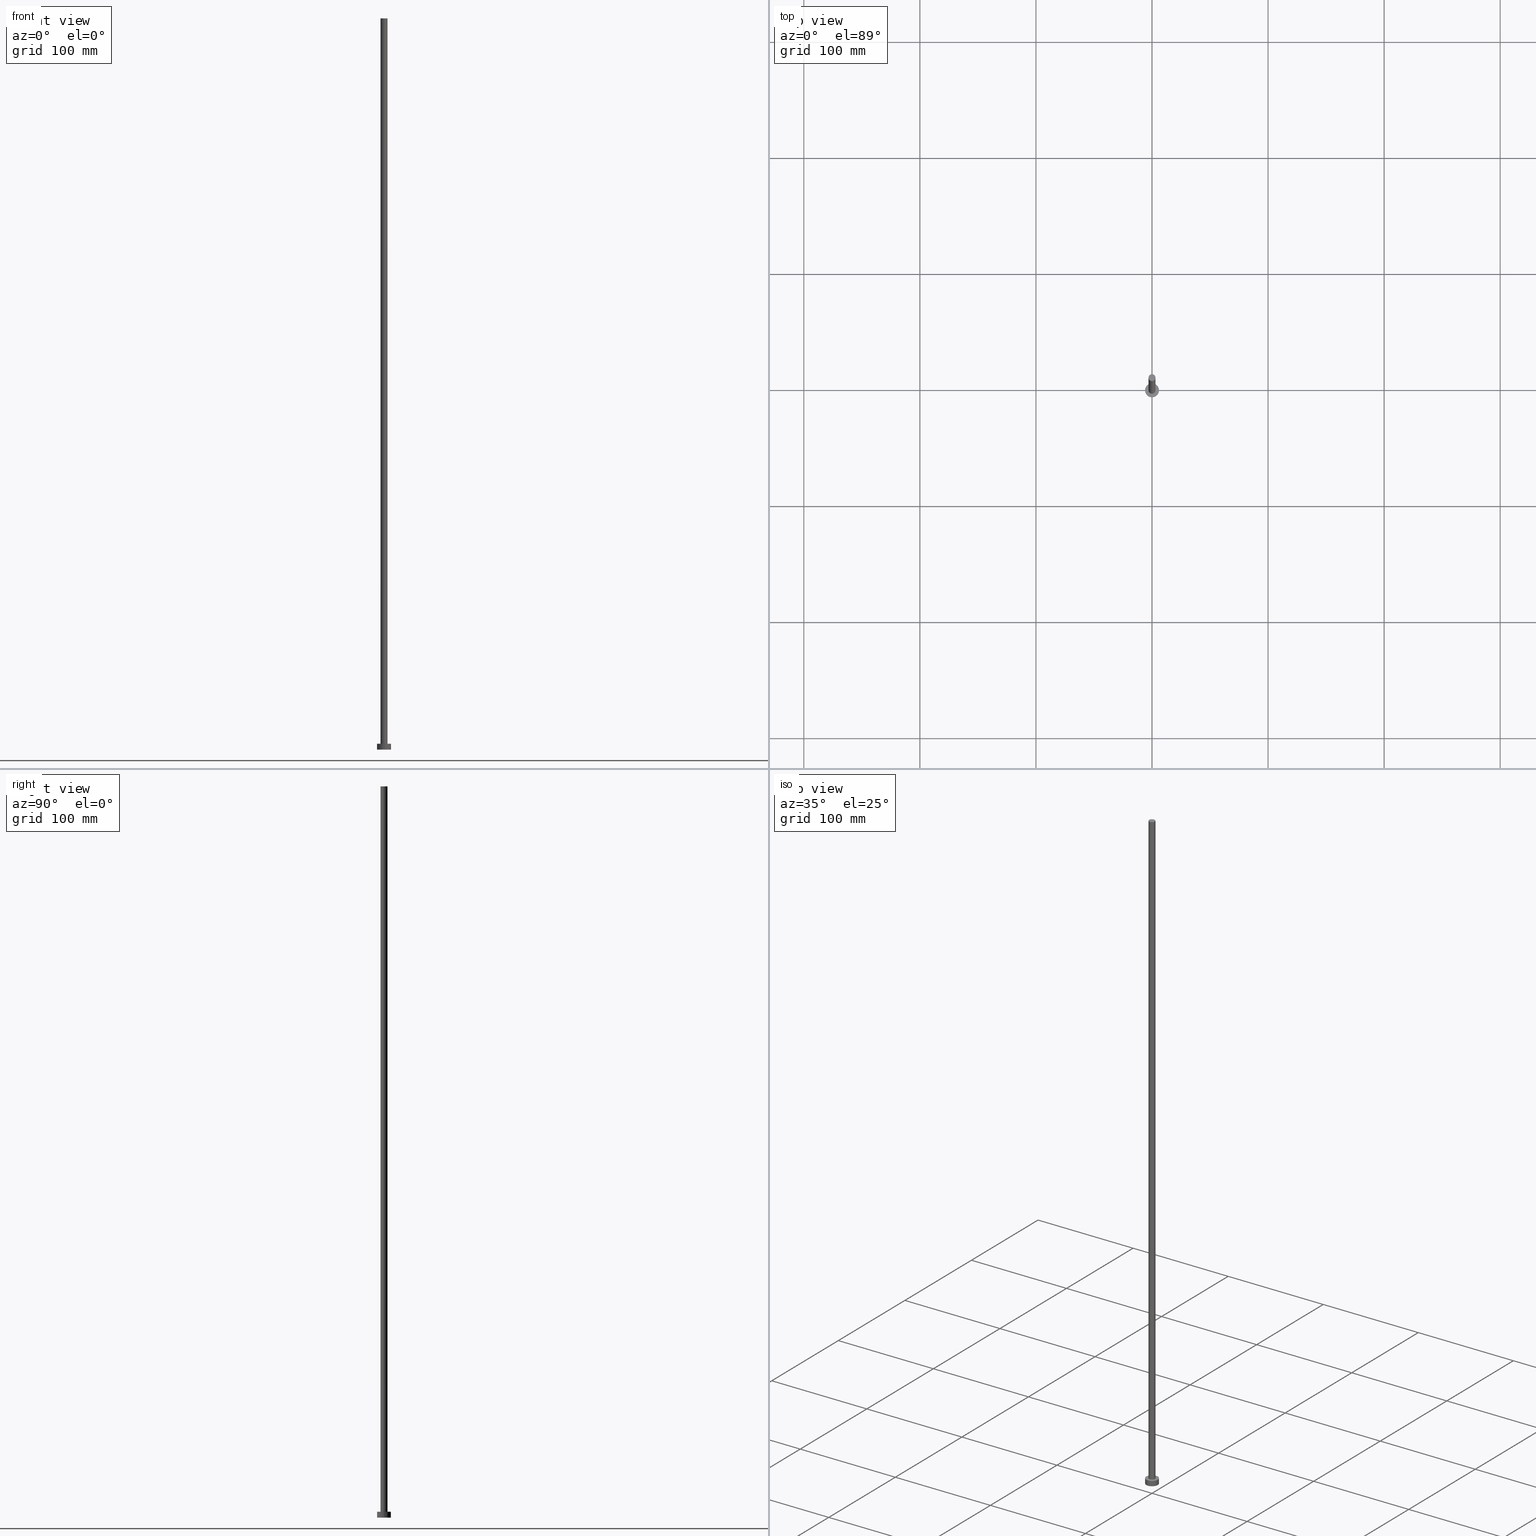
[diagram: canonical four-view strip — front | top / right | iso, engineering-drawing reading convention]
A machine part, canonical four-view strip (front | top / right | iso — engineering-drawing reading convention). The complete STEP part file that produces these views, byte-faithful:
ISO-10303-21;
HEADER;
FILE_DESCRIPTION (( 'STEP AP203' ),
    '1' );
FILE_NAME ('54c2.STEP',
    '2023-02-13T15:44:06',
    ( '' ),
    ( '' ),
    'SwSTEP 2.0',
    'SolidWorks 2019',
    '' );
FILE_SCHEMA (( 'CONFIG_CONTROL_DESIGN' ));
ENDSEC;

DATA;
#1 = DIRECTION ( 'NONE',  ( -0.000000000000000000, -0.000000000000000000, -1.000000000000000000 ) ) ;
#2 = FACE_OUTER_BOUND ( 'NONE', #109, .T. ) ;
#3 = CARTESIAN_POINT ( 'NONE',  ( 6.000000000000000888, 7.347880794884120722E-16, 0.000000000000000000 ) ) ;
#4 = AXIS2_PLACEMENT_3D ( 'NONE', #199, #254, #168 ) ;
#5 = PERSON_AND_ORGANIZATION_ROLE ( 'creator' ) ;
#6 = CALENDAR_DATE ( 2023, 13, 2 ) ;
#7 = DIRECTION ( 'NONE',  ( 1.000000000000000000, 0.000000000000000000, 0.000000000000000000 ) ) ;
#8 = ORIENTED_EDGE ( 'NONE', *, *, #94, .T. ) ;
#9 = CARTESIAN_POINT ( 'NONE',  ( 0.000000000000000000, 0.000000000000000000, 0.000000000000000000 ) ) ;
#10 = AXIS2_PLACEMENT_3D ( 'NONE', #220, #141, #47 ) ;
#11 = MANIFOLD_SOLID_BREP ( 'P�idat vysunut�m3', #46 ) ;
#12 = CC_DESIGN_PERSON_AND_ORGANIZATION_ASSIGNMENT ( #28, #5, ( #50 ) ) ;
#13 = VERTEX_POINT ( 'NONE', #80 ) ;
#14 = ORIENTED_EDGE ( 'NONE', *, *, #25, .F. ) ;
#15 = CARTESIAN_POINT ( 'NONE',  ( -3.000000000000000444, 0.000000000000000000, 630.0000000000000000 ) ) ;
#16 = ORIENTED_EDGE ( 'NONE', *, *, #198, .T. ) ;
#17 = CIRCLE ( 'NONE', #235, 6.000000000000000888 ) ;
#18 = DIRECTION ( 'NONE',  ( 1.000000000000000000, 0.000000000000000000, 0.000000000000000000 ) ) ;
#19 = APPROVAL ( #159, 'NEUR�EN�' ) ;
#20 = PLANE ( 'NONE',  #137 ) ;
#21 = DIRECTION ( 'NONE',  ( 0.000000000000000000, 0.000000000000000000, 1.000000000000000000 ) ) ;
#22 = DATE_TIME_ROLE ( 'creation_date' ) ;
#23 = APPROVAL_STATUS ( 'not_yet_approved' ) ;
#24 = AXIS2_PLACEMENT_3D ( 'NONE', #241, #210, #106 ) ;
#25 = EDGE_CURVE ( 'NONE', #187, #248, #217, .T. ) ;
#26 = EDGE_LOOP ( 'NONE', ( #87, #61, #231, #152 ) ) ;
#27 = AXIS2_PLACEMENT_3D ( 'NONE', #70, #110, #7 ) ;
#28 = PERSON_AND_ORGANIZATION ( #208, #166 ) ;
#29 = DIRECTION ( 'NONE',  ( -0.000000000000000000, -0.000000000000000000, -1.000000000000000000 ) ) ;
#30 = PERSON_AND_ORGANIZATION ( #208, #166 ) ;
#31 = PRODUCT_DEFINITION_SHAPE ( 'NONE', 'NONE',  #50 ) ;
#32 = DIRECTION ( 'NONE',  ( 0.000000000000000000, 0.000000000000000000, 1.000000000000000000 ) ) ;
#33 = ORIENTED_EDGE ( 'NONE', *, *, #57, .T. ) ;
#34 = AXIS2_PLACEMENT_3D ( 'NONE', #144, #222, #216 ) ;
#35 = EDGE_CURVE ( 'NONE', #248, #91, #73, .T. ) ;
#36 = ADVANCED_FACE ( 'NONE', ( #90 ), #181, .F. ) ;
#37 = CIRCLE ( 'NONE', #68, 3.000000000000000444 ) ;
#38 = ORIENTED_EDGE ( 'NONE', *, *, #35, .F. ) ;
#39 = CYLINDRICAL_SURFACE ( 'NONE', #114, 6.000000000000000888 ) ;
#40 = PERSON_AND_ORGANIZATION ( #208, #166 ) ;
#41 = DIRECTION ( 'NONE',  ( 0.000000000000000000, 0.000000000000000000, 1.000000000000000000 ) ) ;
#42 = DIRECTION ( 'NONE',  ( 0.000000000000000000, 0.000000000000000000, 1.000000000000000000 ) ) ;
#43 = CIRCLE ( 'NONE', #27, 6.000000000000000888 ) ;
#44 = EDGE_CURVE ( 'NONE', #153, #13, #173, .T. ) ;
#45 = DIRECTION ( 'NONE',  ( 0.000000000000000000, 0.000000000000000000, 1.000000000000000000 ) ) ;
#46 = CLOSED_SHELL ( 'NONE', ( #237, #211, #63, #154, #36, #122, #86 ) ) ;
#47 = DIRECTION ( 'NONE',  ( -1.000000000000000000, 0.000000000000000000, 0.000000000000000000 ) ) ;
#48 = AXIS2_PLACEMENT_3D ( 'NONE', #184, #45, #116 ) ;
#49 = VERTEX_POINT ( 'NONE', #92 ) ;
#50 = PRODUCT_DEFINITION ( 'NEZN�M�', '', #131, #212 ) ;
#51 = VECTOR ( 'NONE', #1, 1000.000000000000000 ) ;
#52 = ORIENTED_EDGE ( 'NONE', *, *, #25, .T. ) ;
#53 = EDGE_CURVE ( 'NONE', #74, #187, #43, .T. ) ;
#54 = CARTESIAN_POINT ( 'NONE',  ( 0.000000000000000000, 0.000000000000000000, 5.000000000000000000 ) ) ;
#55 = EDGE_LOOP ( 'NONE', ( #252, #38 ) ) ;
#56 = PERSON_AND_ORGANIZATION_ROLE ( 'design_supplier' ) ;
#57 = EDGE_CURVE ( 'NONE', #187, #74, #17, .T. ) ;
#58 = CARTESIAN_POINT ( 'NONE',  ( 6.000000000000000888, 7.347880794884120722E-16, 5.000000000000000000 ) ) ;
#59 = LINE ( 'NONE', #103, #51 ) ;
#60 = CARTESIAN_POINT ( 'NONE',  ( 0.000000000000000000, 0.000000000000000000, 0.000000000000000000 ) ) ;
#61 = ORIENTED_EDGE ( 'NONE', *, *, #44, .F. ) ;
#62 = DIRECTION ( 'NONE',  ( -1.000000000000000000, 0.000000000000000000, 0.000000000000000000 ) ) ;
#63 = ADVANCED_FACE ( 'NONE', ( #244 ), #127, .T. ) ;
#64 = CARTESIAN_POINT ( 'NONE',  ( -6.000000000000000888, 0.000000000000000000, 5.000000000000000000 ) ) ;
#65 = APPROVAL_PERSON_ORGANIZATION ( #219, #19, #75 ) ;
#66 = ADVANCED_BREP_SHAPE_REPRESENTATION ( '54c2', ( #11, #101 ), #229 ) ;
#67 = CC_DESIGN_PERSON_AND_ORGANIZATION_ASSIGNMENT ( #40, #56, ( #131 ) ) ;
#68 = AXIS2_PLACEMENT_3D ( 'NONE', #218, #42, #182 ) ;
#69 = COORDINATED_UNIVERSAL_TIME_OFFSET ( 1, 0, .AHEAD. ) ;
#70 = CARTESIAN_POINT ( 'NONE',  ( 0.000000000000000000, 0.000000000000000000, 5.000000000000000000 ) ) ;
#71 = EDGE_LOOP ( 'NONE', ( #232, #33 ) ) ;
#72 = APPROVAL_DATE_TIME ( #246, #19 ) ;
#73 = CIRCLE ( 'NONE', #128, 6.000000000000000888 ) ;
#74 = VERTEX_POINT ( 'NONE', #77 ) ;
#75 = APPROVAL_ROLE ( '' ) ;
#76 = EDGE_LOOP ( 'NONE', ( #136, #178 ) ) ;
#77 = CARTESIAN_POINT ( 'NONE',  ( -6.000000000000000888, 0.000000000000000000, 5.000000000000000000 ) ) ;
#78 = APPLICATION_PROTOCOL_DEFINITION ( 'international standard', 'config_control_design', 1994, #226 ) ;
#79 = PERSON_AND_ORGANIZATION ( #208, #166 ) ;
#80 = CARTESIAN_POINT ( 'NONE',  ( 3.000000000000000444, 3.673940397442060361E-16, 630.0000000000000000 ) ) ;
#81 = EDGE_CURVE ( 'NONE', #49, #89, #147, .T. ) ;
#82 = DIRECTION ( 'NONE',  ( 1.000000000000000000, 0.000000000000000000, -0.000000000000000000 ) ) ;
#83 = CARTESIAN_POINT ( 'NONE',  ( 0.000000000000000000, 0.000000000000000000, 5.000000000000000000 ) ) ;
#84 =( NAMED_UNIT ( * ) PLANE_ANGLE_UNIT ( ) SI_UNIT ( $, .RADIAN. ) );
#85 = APPLICATION_CONTEXT ( 'configuration controlled 3d designs of mechanical parts and assemblies' ) ;
#86 = ADVANCED_FACE ( 'NONE', ( #163 ), #160, .T. ) ;
#87 = ORIENTED_EDGE ( 'NONE', *, *, #245, .F. ) ;
#88 = LOCAL_TIME ( 16, 44, 6.000000000000000000, #133 ) ;
#89 = VERTEX_POINT ( 'NONE', #146 ) ;
#90 = FACE_OUTER_BOUND ( 'NONE', #55, .T. ) ;
#91 = VERTEX_POINT ( 'NONE', #236 ) ;
#92 = CARTESIAN_POINT ( 'NONE',  ( 3.000000000000000444, 3.673940397442060361E-16, 5.000000000000000000 ) ) ;
#93 = COORDINATED_UNIVERSAL_TIME_OFFSET ( 1, 0, .AHEAD. ) ;
#94 = EDGE_CURVE ( 'NONE', #74, #91, #179, .T. ) ;
#95 = FACE_OUTER_BOUND ( 'NONE', #71, .T. ) ;
#96 = PERSON_AND_ORGANIZATION ( #208, #166 ) ;
#97 = PERSON_AND_ORGANIZATION_ROLE ( 'creator' ) ;
#98 = CC_DESIGN_PERSON_AND_ORGANIZATION_ASSIGNMENT ( #79, #97, ( #131 ) ) ;
#99 = DIRECTION ( 'NONE',  ( -0.000000000000000000, -0.000000000000000000, -1.000000000000000000 ) ) ;
#100 = FACE_BOUND ( 'NONE', #149, .T. ) ;
#101 = AXIS2_PLACEMENT_3D ( 'NONE', #9, #113, #194 ) ;
#102 = COORDINATED_UNIVERSAL_TIME_OFFSET ( 1, 0, .AHEAD. ) ;
#103 = CARTESIAN_POINT ( 'NONE',  ( -3.000000000000000444, 0.000000000000000000, 630.0000000000000000 ) ) ;
#104 = DIRECTION ( 'NONE',  ( 1.000000000000000000, 0.000000000000000000, 0.000000000000000000 ) ) ;
#105 = DATE_AND_TIME ( #143, #243 ) ;
#106 = DIRECTION ( 'NONE',  ( -1.000000000000000000, 0.000000000000000000, 0.000000000000000000 ) ) ;
#107 = PRODUCT ( '54c2', '54c2', '', ( #176 ) ) ;
#108 = APPROVAL_PERSON_ORGANIZATION ( #30, #230, #228 ) ;
#109 = EDGE_LOOP ( 'NONE', ( #238, #213, #193, #215 ) ) ;
#110 = DIRECTION ( 'NONE',  ( 0.000000000000000000, 0.000000000000000000, 1.000000000000000000 ) ) ;
#111 = CC_DESIGN_APPROVAL ( #230, ( #131 ) ) ;
#112 = CC_DESIGN_PERSON_AND_ORGANIZATION_ASSIGNMENT ( #96, #157, ( #107 ) ) ;
#113 = DIRECTION ( 'NONE',  ( 0.000000000000000000, 0.000000000000000000, 1.000000000000000000 ) ) ;
#114 = AXIS2_PLACEMENT_3D ( 'NONE', #119, #158, #62 ) ;
#115 = DIRECTION ( 'NONE',  ( 1.000000000000000000, 0.000000000000000000, 0.000000000000000000 ) ) ;
#116 = DIRECTION ( 'NONE',  ( 1.000000000000000000, 0.000000000000000000, -0.000000000000000000 ) ) ;
#117 = APPROVAL ( #23, 'NEUR�EN�' ) ;
#118 = DATE_AND_TIME ( #6, #88 ) ;
#119 = CARTESIAN_POINT ( 'NONE',  ( 0.000000000000000000, 0.000000000000000000, 5.000000000000000000 ) ) ;
#120 = PERSON_AND_ORGANIZATION_ROLE ( 'classification_officer' ) ;
#121 = FACE_OUTER_BOUND ( 'NONE', #26, .T. ) ;
#122 = ADVANCED_FACE ( 'NONE', ( #121 ), #142, .T. ) ;
#123 = DIRECTION ( 'NONE',  ( -0.000000000000000000, -0.000000000000000000, -1.000000000000000000 ) ) ;
#124 = LOCAL_TIME ( 16, 44, 6.000000000000000000, #69 ) ;
#125 = SHAPE_DEFINITION_REPRESENTATION ( #31, #66 ) ;
#126 = CARTESIAN_POINT ( 'NONE',  ( 0.000000000000000000, 0.000000000000000000, 5.000000000000000000 ) ) ;
#127 = CYLINDRICAL_SURFACE ( 'NONE', #10, 6.000000000000000888 ) ;
#128 = AXIS2_PLACEMENT_3D ( 'NONE', #155, #32, #115 ) ;
#129 =( NAMED_UNIT ( * ) SI_UNIT ( $, .STERADIAN. ) SOLID_ANGLE_UNIT ( ) );
#130 = VECTOR ( 'NONE', #201, 1000.000000000000000 ) ;
#131 = PRODUCT_DEFINITION_FORMATION_WITH_SPECIFIED_SOURCE ( 'LIBOVOLN�', '', #107, .NOT_KNOWN. ) ;
#132 = CALENDAR_DATE ( 2023, 13, 2 ) ;
#133 = COORDINATED_UNIVERSAL_TIME_OFFSET ( 1, 0, .AHEAD. ) ;
#134 = DIRECTION ( 'NONE',  ( 0.000000000000000000, 0.000000000000000000, 1.000000000000000000 ) ) ;
#135 = AXIS2_PLACEMENT_3D ( 'NONE', #126, #223, #18 ) ;
#136 = ORIENTED_EDGE ( 'NONE', *, *, #44, .T. ) ;
#137 = AXIS2_PLACEMENT_3D ( 'NONE', #83, #175, #82 ) ;
#138 = DIRECTION ( 'NONE',  ( 1.000000000000000000, 0.000000000000000000, -0.000000000000000000 ) ) ;
#139 = LOCAL_TIME ( 16, 44, 6.000000000000000000, #102 ) ;
#140 = CARTESIAN_POINT ( 'NONE',  ( 6.000000000000000888, 7.347880794884120722E-16, 5.000000000000000000 ) ) ;
#141 = DIRECTION ( 'NONE',  ( -0.000000000000000000, -0.000000000000000000, -1.000000000000000000 ) ) ;
#142 = CYLINDRICAL_SURFACE ( 'NONE', #203, 3.000000000000000444 ) ;
#143 = CALENDAR_DATE ( 2023, 13, 2 ) ;
#144 = CARTESIAN_POINT ( 'NONE',  ( 0.000000000000000000, 0.000000000000000000, 0.000000000000000000 ) ) ;
#145 = CC_DESIGN_SECURITY_CLASSIFICATION ( #164, ( #131 ) ) ;
#146 = CARTESIAN_POINT ( 'NONE',  ( -3.000000000000000444, 0.000000000000000000, 5.000000000000000000 ) ) ;
#147 = CIRCLE ( 'NONE', #135, 3.000000000000000444 ) ;
#148 = UNCERTAINTY_MEASURE_WITH_UNIT (LENGTH_MEASURE( 1.000000000000000082E-05 ), #186, 'distance_accuracy_value', 'NONE');
#149 = EDGE_LOOP ( 'NONE', ( #221, #240 ) ) ;
#150 = CC_DESIGN_DATE_AND_TIME_ASSIGNMENT ( #192, #22, ( #50 ) ) ;
#151 = ORIENTED_EDGE ( 'NONE', *, *, #53, .F. ) ;
#152 = ORIENTED_EDGE ( 'NONE', *, *, #206, .T. ) ;
#153 = VERTEX_POINT ( 'NONE', #15 ) ;
#154 = ADVANCED_FACE ( 'NONE', ( #100, #95 ), #20, .T. ) ;
#155 = CARTESIAN_POINT ( 'NONE',  ( 0.000000000000000000, 0.000000000000000000, 0.000000000000000000 ) ) ;
#156 = CIRCLE ( 'NONE', #196, 3.000000000000000444 ) ;
#157 = PERSON_AND_ORGANIZATION_ROLE ( 'design_owner' ) ;
#158 = DIRECTION ( 'NONE',  ( -0.000000000000000000, -0.000000000000000000, -1.000000000000000000 ) ) ;
#159 = APPROVAL_STATUS ( 'not_yet_approved' ) ;
#160 = PLANE ( 'NONE',  #48 ) ;
#161 = EDGE_CURVE ( 'NONE', #153, #89, #59, .T. ) ;
#162 = COORDINATED_UNIVERSAL_TIME_OFFSET ( 1, 0, .AHEAD. ) ;
#163 = FACE_OUTER_BOUND ( 'NONE', #76, .T. ) ;
#164 = SECURITY_CLASSIFICATION ( '', '', #195 ) ;
#165 = PERSON_AND_ORGANIZATION ( #208, #166 ) ;
#166 = ORGANIZATION ( 'NEUR�EN�', 'NEUR�EN�', '' ) ;
#167 = ORIENTED_EDGE ( 'NONE', *, *, #94, .F. ) ;
#168 = DIRECTION ( 'NONE',  ( 1.000000000000000000, 0.000000000000000000, 0.000000000000000000 ) ) ;
#169 = DIRECTION ( 'NONE',  ( 1.000000000000000000, 0.000000000000000000, 0.000000000000000000 ) ) ;
#170 = EDGE_LOOP ( 'NONE', ( #14, #151, #8, #16 ) ) ;
#171 = CALENDAR_DATE ( 2023, 13, 2 ) ;
#172 = CC_DESIGN_PERSON_AND_ORGANIZATION_ASSIGNMENT ( #253, #120, ( #164 ) ) ;
#173 = CIRCLE ( 'NONE', #4, 3.000000000000000444 ) ;
#174 = CALENDAR_DATE ( 2023, 13, 2 ) ;
#175 = DIRECTION ( 'NONE',  ( 0.000000000000000000, 0.000000000000000000, 1.000000000000000000 ) ) ;
#176 = MECHANICAL_CONTEXT ( 'NONE', #85, 'mechanical' ) ;
#177 = VECTOR ( 'NONE', #29, 1000.000000000000000 ) ;
#178 = ORIENTED_EDGE ( 'NONE', *, *, #224, .T. ) ;
#179 = LINE ( 'NONE', #64, #130 ) ;
#180 = DATE_TIME_ROLE ( 'classification_date' ) ;
#181 = PLANE ( 'NONE',  #214 ) ;
#182 = DIRECTION ( 'NONE',  ( 1.000000000000000000, 0.000000000000000000, 0.000000000000000000 ) ) ;
#183 = APPROVAL_ROLE ( '' ) ;
#184 = CARTESIAN_POINT ( 'NONE',  ( 0.000000000000000000, 0.000000000000000000, 630.0000000000000000 ) ) ;
#185 = FACE_OUTER_BOUND ( 'NONE', #249, .T. ) ;
#186 =( LENGTH_UNIT ( ) NAMED_UNIT ( * ) SI_UNIT ( .MILLI., .METRE. ) );
#187 = VERTEX_POINT ( 'NONE', #140 ) ;
#188 = LOCAL_TIME ( 16, 44, 6.000000000000000000, #93 ) ;
#189 = VECTOR ( 'NONE', #99, 1000.000000000000000 ) ;
#190 = APPROVAL_STATUS ( 'not_yet_approved' ) ;
#191 = ORIENTED_EDGE ( 'NONE', *, *, #57, .F. ) ;
#192 = DATE_AND_TIME ( #132, #124 ) ;
#193 = ORIENTED_EDGE ( 'NONE', *, *, #81, .T. ) ;
#194 = DIRECTION ( 'NONE',  ( 1.000000000000000000, 0.000000000000000000, 0.000000000000000000 ) ) ;
#195 = SECURITY_CLASSIFICATION_LEVEL ( 'unclassified' ) ;
#196 = AXIS2_PLACEMENT_3D ( 'NONE', #202, #21, #104 ) ;
#197 = DIRECTION ( 'NONE',  ( -1.000000000000000000, 0.000000000000000000, 0.000000000000000000 ) ) ;
#198 = EDGE_CURVE ( 'NONE', #91, #248, #225, .T. ) ;
#199 = CARTESIAN_POINT ( 'NONE',  ( 0.000000000000000000, 0.000000000000000000, 630.0000000000000000 ) ) ;
#200 = CARTESIAN_POINT ( 'NONE',  ( 0.000000000000000000, 0.000000000000000000, 630.0000000000000000 ) ) ;
#201 = DIRECTION ( 'NONE',  ( -0.000000000000000000, -0.000000000000000000, -1.000000000000000000 ) ) ;
#202 = CARTESIAN_POINT ( 'NONE',  ( 0.000000000000000000, 0.000000000000000000, 5.000000000000000000 ) ) ;
#203 = AXIS2_PLACEMENT_3D ( 'NONE', #200, #123, #197 ) ;
#204 = CC_DESIGN_APPROVAL ( #117, ( #50 ) ) ;
#205 = CARTESIAN_POINT ( 'NONE',  ( 3.000000000000000444, 3.673940397442060361E-16, 630.0000000000000000 ) ) ;
#206 = EDGE_CURVE ( 'NONE', #89, #49, #156, .T. ) ;
#207 = APPROVAL_DATE_TIME ( #105, #117 ) ;
#208 = PERSON ( 'NEUR�EN�', 'NEUR�EN�', 'NEUR�EN�', ('NEUR�EN�'), ('NEUR�EN�'), ('NEUR�EN�') ) ;
#209 = APPLICATION_PROTOCOL_DEFINITION ( 'international standard', 'config_control_design', 1994, #85 ) ;
#210 = DIRECTION ( 'NONE',  ( -0.000000000000000000, -0.000000000000000000, -1.000000000000000000 ) ) ;
#211 = ADVANCED_FACE ( 'NONE', ( #185 ), #39, .T. ) ;
#212 = DESIGN_CONTEXT ( 'detailed design', #226, 'design' ) ;
#213 = ORIENTED_EDGE ( 'NONE', *, *, #245, .T. ) ;
#214 = AXIS2_PLACEMENT_3D ( 'NONE', #60, #41, #138 ) ;
#215 = ORIENTED_EDGE ( 'NONE', *, *, #161, .F. ) ;
#216 = DIRECTION ( 'NONE',  ( 1.000000000000000000, 0.000000000000000000, 0.000000000000000000 ) ) ;
#217 = LINE ( 'NONE', #58, #189 ) ;
#218 = CARTESIAN_POINT ( 'NONE',  ( 0.000000000000000000, 0.000000000000000000, 630.0000000000000000 ) ) ;
#219 = PERSON_AND_ORGANIZATION ( #208, #166 ) ;
#220 = CARTESIAN_POINT ( 'NONE',  ( 0.000000000000000000, 0.000000000000000000, 5.000000000000000000 ) ) ;
#221 = ORIENTED_EDGE ( 'NONE', *, *, #206, .F. ) ;
#222 = DIRECTION ( 'NONE',  ( 0.000000000000000000, 0.000000000000000000, 1.000000000000000000 ) ) ;
#223 = DIRECTION ( 'NONE',  ( 0.000000000000000000, 0.000000000000000000, 1.000000000000000000 ) ) ;
#224 = EDGE_CURVE ( 'NONE', #13, #153, #37, .T. ) ;
#225 = CIRCLE ( 'NONE', #34, 6.000000000000000888 ) ;
#226 = APPLICATION_CONTEXT ( 'configuration controlled 3d designs of mechanical parts and assemblies' ) ;
#227 = PRODUCT_RELATED_PRODUCT_CATEGORY ( 'detail', '', ( #107 ) ) ;
#228 = APPROVAL_ROLE ( '' ) ;
#229 =( GEOMETRIC_REPRESENTATION_CONTEXT ( 3 ) GLOBAL_UNCERTAINTY_ASSIGNED_CONTEXT ( ( #148 ) ) GLOBAL_UNIT_ASSIGNED_CONTEXT ( ( #186, #84, #129 ) ) REPRESENTATION_CONTEXT ( 'NONE', 'WORKASPACE' ) );
#230 = APPROVAL ( #190, 'NEUR�EN�' ) ;
#231 = ORIENTED_EDGE ( 'NONE', *, *, #161, .T. ) ;
#232 = ORIENTED_EDGE ( 'NONE', *, *, #53, .T. ) ;
#233 = CC_DESIGN_DATE_AND_TIME_ASSIGNMENT ( #251, #180, ( #164 ) ) ;
#234 = APPROVAL_PERSON_ORGANIZATION ( #165, #117, #183 ) ;
#235 = AXIS2_PLACEMENT_3D ( 'NONE', #54, #134, #169 ) ;
#236 = CARTESIAN_POINT ( 'NONE',  ( -6.000000000000000888, 0.000000000000000000, 0.000000000000000000 ) ) ;
#237 = ADVANCED_FACE ( 'NONE', ( #2 ), #255, .T. ) ;
#238 = ORIENTED_EDGE ( 'NONE', *, *, #224, .F. ) ;
#239 = LINE ( 'NONE', #205, #177 ) ;
#240 = ORIENTED_EDGE ( 'NONE', *, *, #81, .F. ) ;
#241 = CARTESIAN_POINT ( 'NONE',  ( 0.000000000000000000, 0.000000000000000000, 630.0000000000000000 ) ) ;
#242 = ORIENTED_EDGE ( 'NONE', *, *, #35, .T. ) ;
#243 = LOCAL_TIME ( 16, 44, 6.000000000000000000, #162 ) ;
#244 = FACE_OUTER_BOUND ( 'NONE', #170, .T. ) ;
#245 = EDGE_CURVE ( 'NONE', #13, #49, #239, .T. ) ;
#246 = DATE_AND_TIME ( #171, #188 ) ;
#247 = APPROVAL_DATE_TIME ( #118, #230 ) ;
#248 = VERTEX_POINT ( 'NONE', #3 ) ;
#249 = EDGE_LOOP ( 'NONE', ( #191, #52, #242, #167 ) ) ;
#250 = CC_DESIGN_APPROVAL ( #19, ( #164 ) ) ;
#251 = DATE_AND_TIME ( #174, #139 ) ;
#252 = ORIENTED_EDGE ( 'NONE', *, *, #198, .F. ) ;
#253 = PERSON_AND_ORGANIZATION ( #208, #166 ) ;
#254 = DIRECTION ( 'NONE',  ( 0.000000000000000000, 0.000000000000000000, 1.000000000000000000 ) ) ;
#255 = CYLINDRICAL_SURFACE ( 'NONE', #24, 3.000000000000000444 ) ;
ENDSEC;
END-ISO-10303-21;
